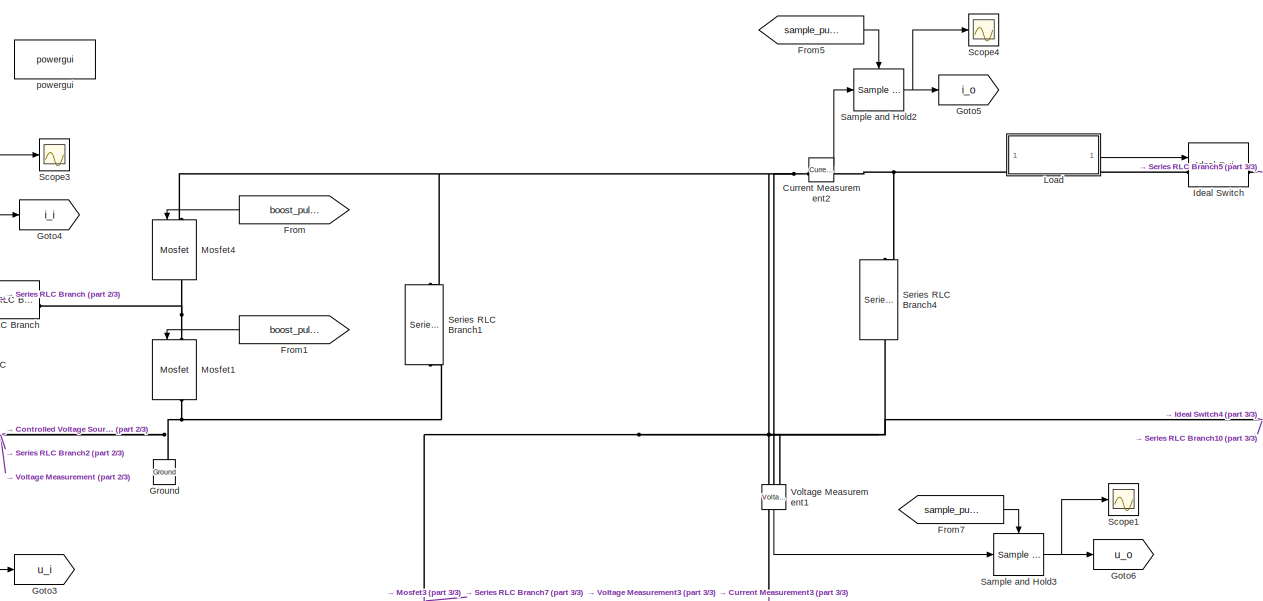
[diagram: root canvas - part 1/3, top center region]
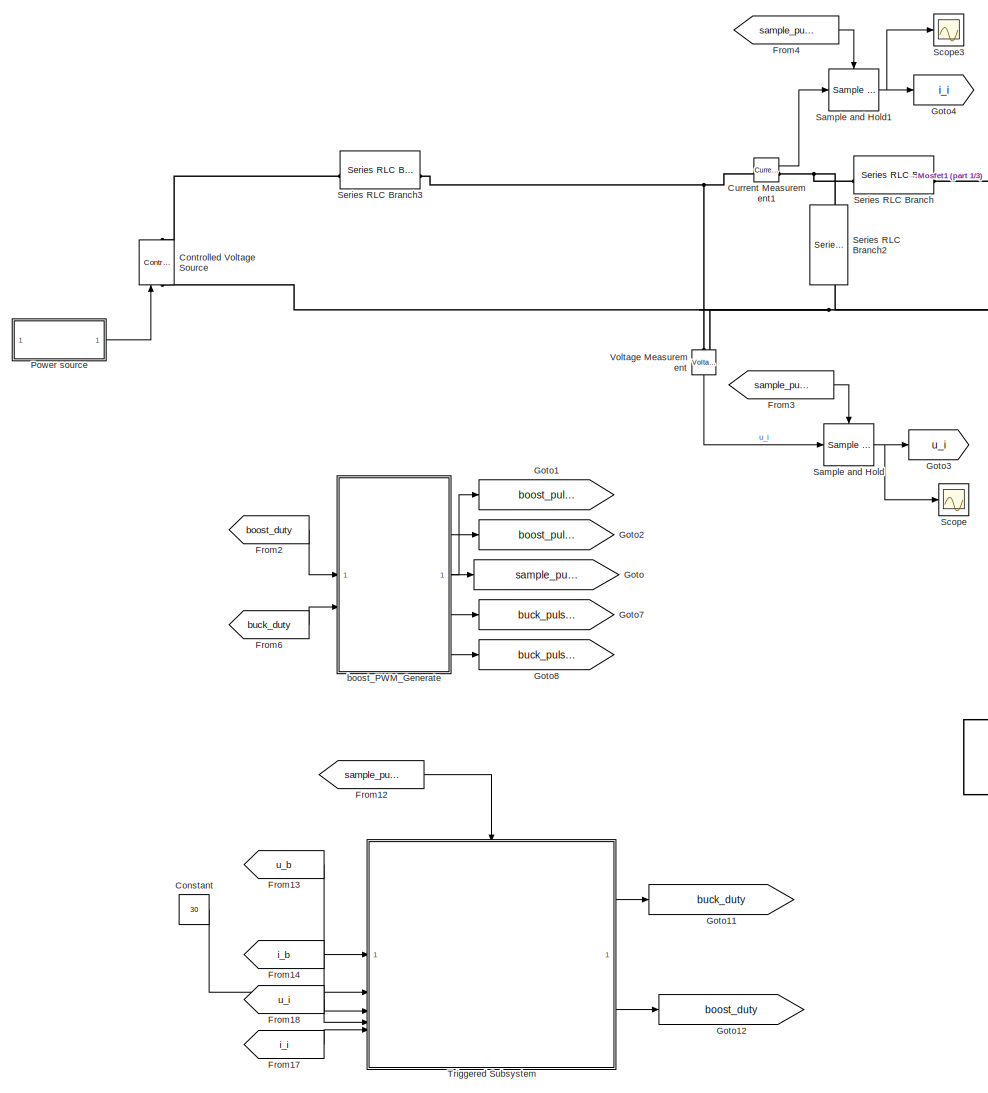
[diagram: root canvas - part 2/3, left side, full height]
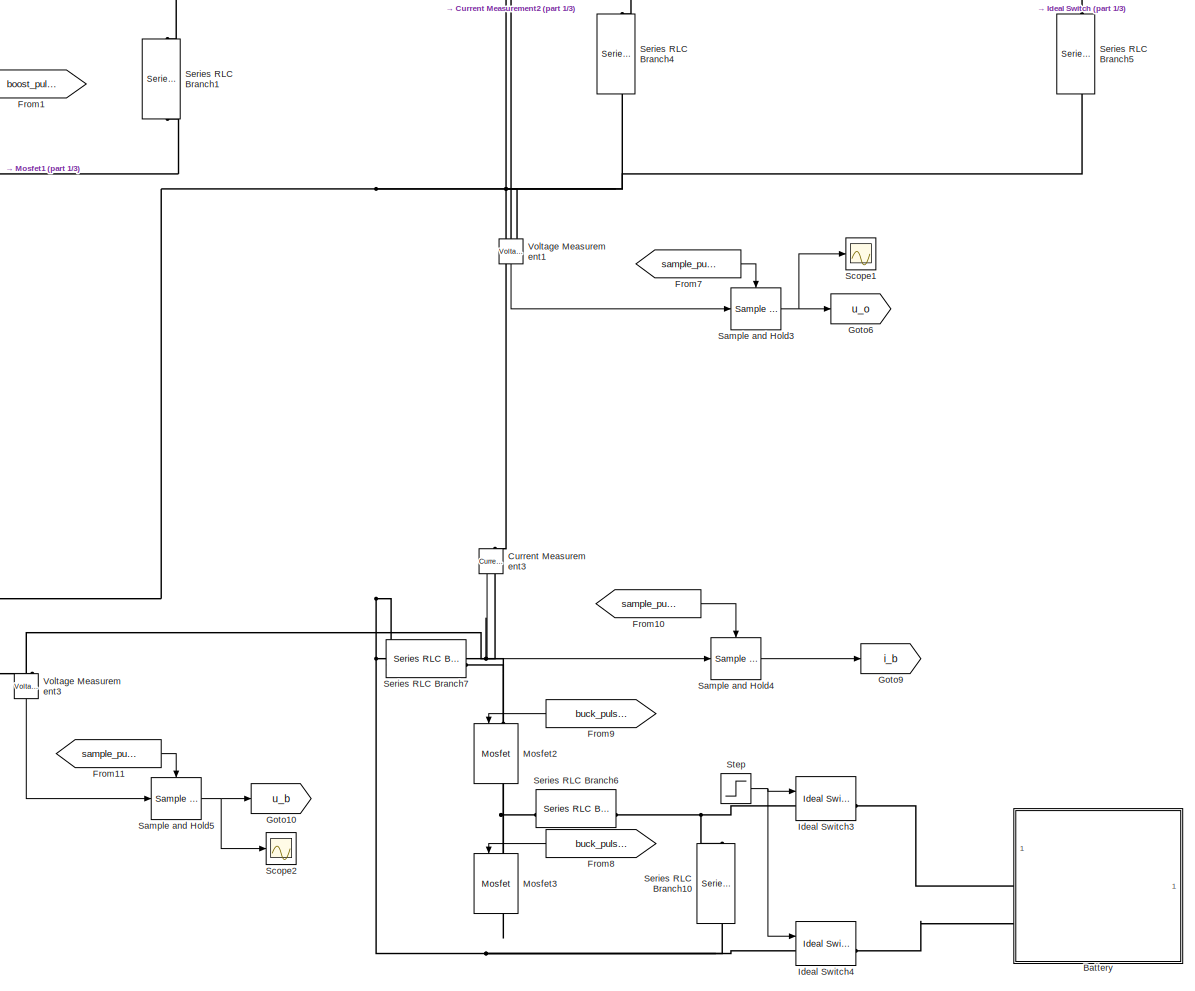
[diagram: root canvas - part 3/3, right side, full height]
MODEL slx_090e259a4e32
KIND model
CONFIG AbsTol = auto
CONFIG EnableMultiTasking = off
CONFIG FixedStep = 1e-8
CONFIG MaxStep = 1e-6
CONFIG MinStep = auto
CONFIG RelTol = 1e-5
CONFIG SampleTimeConstraint = Unconstrained
CONFIG SolverName = ode23tb
CONFIG StartTime = 0.0
CONFIG StopTime = 14
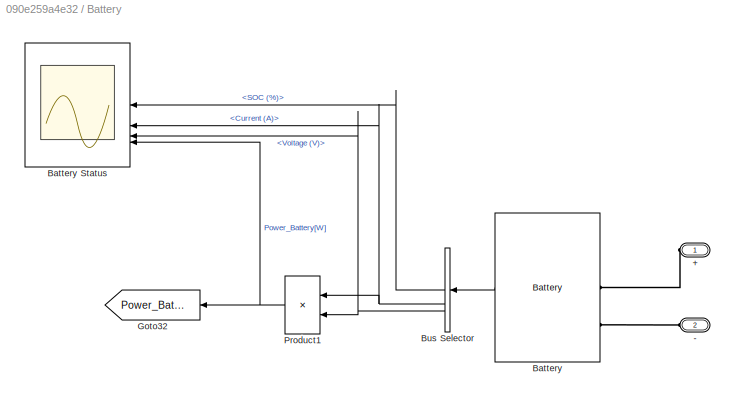
BLOCK [SubSystem] Battery
  NameLocation = top
BLOCK [PMIOPort] Battery/+
  NameLocation = top
  Side = Left
BLOCK [PMIOPort] Battery/-
  NameLocation = top
  Port = 2
  Side = Left
BLOCK [Reference] Battery/Battery  REF=spsBatteryLib/Battery
  LibrarySourceBlock = electricdrivelib/Extra Sources/Battery
  NameLocation = top
  SourceBlock = spsBatteryLib/Battery
  SourceType = Battery
BLOCK [Scope] Battery/Battery Status
  Floating = off
  NumInputPorts = 4
  ScopeSpecificationString = Simulink.scopes.TimeScopeBlockCfg('CurrentConfiguration', extmgr.ConfigurationSet(extmgr.Configuration('Core','General UI',true),extmgr.Configuration('Core','Source UI',true),extmgr.Configuration('Sources','WiredSimulink',true,'DataLoggingVariableName','ScopeData4','DataLoggingSaveFormat','Array','DataLoggingDecimation','1'),extmgr.Configuration('Visuals','Time Domain',true,'SerializedDisplays',{s...<+3552ch>
BLOCK [BusSelector] Battery/Bus Selector
  NameLocation = top
  OutputSignals = SOC (%),Current (A),Voltage (V)
BLOCK [Goto] Battery/Goto32
  GotoTag = Power_Battery
  TagVisibility = global
BLOCK [Product] Battery/Product1
  NameLocation = top
  RndMeth = Zero
BLOCK [Constant] Constant
  Value = 30
BLOCK [Reference] Controlled Voltage Source  REF=spsControlledVoltageSourceLib/Controlled Voltage Source
  LibrarySourceBlock = sps_lib/Sources/Controlled Voltage Source
  SourceBlock = spsControlledVoltageSourceLib/Controlled Voltage Source
  SourceType = Controlled Voltage Source
BLOCK [Reference] Current Measurement1  REF=spsCurrentMeasurementLib/Current Measurement
  LibrarySourceBlock = sps_lib/Sensors and Measurements/Current Measurement
  SourceBlock = spsCurrentMeasurementLib/Current Measurement
  SourceType = Current Measurement
  UserDataPersistent = on
BLOCK [Reference] Current Measurement2  REF=spsCurrentMeasurementLib/Current Measurement
  LibrarySourceBlock = sps_lib/Sensors and Measurements/Current Measurement
  SourceBlock = spsCurrentMeasurementLib/Current Measurement
  SourceType = Current Measurement
  UserDataPersistent = on
BLOCK [Reference] Current Measurement3  REF=spsCurrentMeasurementLib/Current Measurement
  LibrarySourceBlock = sps_lib/Sensors and Measurements/Current Measurement
  NameLocation = left
  SourceBlock = spsCurrentMeasurementLib/Current Measurement
  SourceType = Current Measurement
  UserDataPersistent = on
BLOCK [From] From
  GotoTag = boost_pulse_pgate
  NameLocation = top
BLOCK [From] From1
  GotoTag = boost_pulse_ngate
  NameLocation = top
BLOCK [From] From10
  GotoTag = sample_pulse
BLOCK [From] From11
  GotoTag = sample_pulse
BLOCK [From] From12
  GotoTag = sample_pulse
BLOCK [From] From13
  GotoTag = u_b
BLOCK [From] From14
  GotoTag = i_b
BLOCK [From] From17
  GotoTag = i_i
BLOCK [From] From18
  GotoTag = u_i
BLOCK [From] From2
  GotoTag = boost_duty
BLOCK [From] From3
  GotoTag = sample_pulse
BLOCK [From] From4
  GotoTag = sample_pulse
BLOCK [From] From5
  GotoTag = sample_pulse
BLOCK [From] From6
  GotoTag = buck_duty
BLOCK [From] From7
  GotoTag = sample_pulse
BLOCK [From] From8
  GotoTag = buck_pulse_ngate
  NameLocation = top
BLOCK [From] From9
  GotoTag = buck_pulse_pgate
  NameLocation = top
BLOCK [Goto] Goto
  GotoTag = sample_pulse
BLOCK [Goto] Goto1
  GotoTag = boost_pulse_pgate
BLOCK [Goto] Goto10
  GotoTag = u_b
BLOCK [Goto] Goto11
  GotoTag = buck_duty
BLOCK [Goto] Goto12
  GotoTag = boost_duty
BLOCK [Goto] Goto2
  GotoTag = boost_pulse_ngate
BLOCK [Goto] Goto3
  GotoTag = u_i
BLOCK [Goto] Goto4
  GotoTag = i_i
BLOCK [Goto] Goto5
  GotoTag = i_o
BLOCK [Goto] Goto6
  GotoTag = u_o
BLOCK [Goto] Goto7
  GotoTag = buck_pulse_pgate
BLOCK [Goto] Goto8
  GotoTag = buck_pulse_ngate
BLOCK [Goto] Goto9
  GotoTag = i_b
BLOCK [Reference] Ground  REF=spsGroundLib/Ground
  LibrarySourceBlock = sps_lib/Utilities/Ground
  NameLocation = right
  SourceBlock = spsGroundLib/Ground
  SourceType = Ground
BLOCK [Reference] Ideal Switch  REF=spsIdealSwitchLib/Ideal Switch
  LibrarySourceBlock = sps_lib/Power Electronics/Ideal Switch
  SourceBlock = spsIdealSwitchLib/Ideal Switch
  SourceType = Ideal Switch
BLOCK [Reference] Ideal Switch3  REF=spsIdealSwitchLib/Ideal Switch
  LibrarySourceBlock = sps_lib/Power Electronics/Ideal Switch
  SourceBlock = spsIdealSwitchLib/Ideal Switch
  SourceType = Ideal Switch
BLOCK [Reference] Ideal Switch4  REF=spsIdealSwitchLib/Ideal Switch
  LibrarySourceBlock = sps_lib/Power Electronics/Ideal Switch
  SourceBlock = spsIdealSwitchLib/Ideal Switch
  SourceType = Ideal Switch
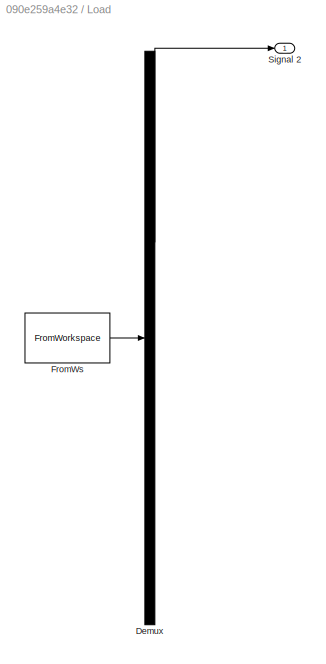
BLOCK [SubSystem] Load
  ClipboardFcn = sigbuilder_block('clipboard');
  CloseFcn = sigbuilder_block('close');
  ContinueFcn = sigbuilder_block('continue');
  CopyFcn = sigbuilder_block('copy');
  DeleteFcn = sigbuilder_block('delete');
  LoadFcn = sigbuilder_block('load');
  MaskHideContents = on
  ModelCloseFcn = sigbuilder_block('modelClose');
  NameChangeFcn = sigbuilder_block('namechange');
  OpenFcn = sigbuilder_block('open',[436.966 199.241 549.931 400.345 ]);
  PauseFcn = sigbuilder_block('pause');
  PreSaveFcn = sigbuilder_block('preSave');
  StartFcn = sigbuilder_block('start');
  StopFcn = sigbuilder_block('stop');
  Tag = STV Subsys
BLOCK [Demux] Load/Demux
  DisplayOption = none
  Outputs = 1
  Tag = STV Demux
BLOCK [FromWorkspace] Load/FromWs
  Tag = STV FromWs
  VariableName = tuvar
BLOCK [Outport] Load/Signal 2
  Tag = STV Outport
  VectorParamsAs1DForOutWhenUnconnected = off
BLOCK [Reference] Mosfet1  REF=spsMosfetLib/Mosfet
  LibrarySourceBlock = sps_lib/Power Electronics/Mosfet
  NameLocation = left
  SourceBlock = spsMosfetLib/Mosfet
  SourceType = Mosfet
BLOCK [Reference] Mosfet2  REF=spsMosfetLib/Mosfet
  LibrarySourceBlock = sps_lib/Power Electronics/Mosfet
  NameLocation = left
  SourceBlock = spsMosfetLib/Mosfet
  SourceType = Mosfet
BLOCK [Reference] Mosfet3  REF=spsMosfetLib/Mosfet
  LibrarySourceBlock = sps_lib/Power Electronics/Mosfet
  NameLocation = left
  SourceBlock = spsMosfetLib/Mosfet
  SourceType = Mosfet
BLOCK [Reference] Mosfet4  REF=spsMosfetLib/Mosfet
  LibrarySourceBlock = sps_lib/Power Electronics/Mosfet
  NameLocation = left
  SourceBlock = spsMosfetLib/Mosfet
  SourceType = Mosfet
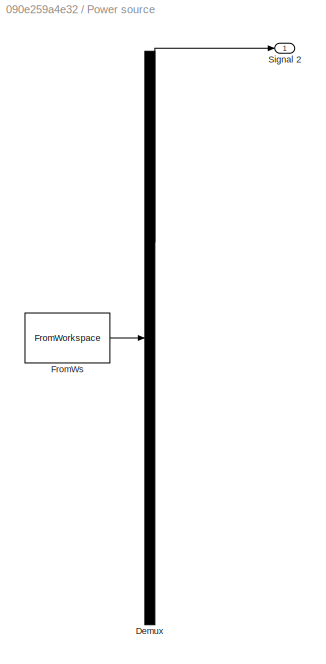
BLOCK [SubSystem] Power source
  ClipboardFcn = sigbuilder_block('clipboard');
  CloseFcn = sigbuilder_block('close');
  ContinueFcn = sigbuilder_block('continue');
  CopyFcn = sigbuilder_block('copy');
  DeleteFcn = sigbuilder_block('delete');
  LoadFcn = sigbuilder_block('load',[436.966 199.241 549.931 400.345 ]);
  MaskHideContents = on
  ModelCloseFcn = sigbuilder_block('modelClose');
  NameChangeFcn = sigbuilder_block('namechange');
  OpenFcn = sigbuilder_block('open',[436.966 199.241 549.931 400.345 ]);
  PauseFcn = sigbuilder_block('pause');
  PreSaveFcn = sigbuilder_block('preSave');
  StartFcn = sigbuilder_block('start');
  StopFcn = sigbuilder_block('stop');
  Tag = STV Subsys
BLOCK [Demux] Power source/Demux
  DisplayOption = none
  Outputs = 1
  Tag = STV Demux
BLOCK [FromWorkspace] Power source/FromWs
  Tag = STV FromWs
  VariableName = tuvar
BLOCK [Outport] Power source/Signal 2
  Tag = STV Outport
  VectorParamsAs1DForOutWhenUnconnected = off
BLOCK [Reference] Sample and Hold  REF=dspsigops/Sample
and Hold
  LibrarySourceBlock = dsphdlsupportsigops/Sample\nand Hold
  SourceBlock = dspsigops/Sample\nand Hold
  SourceType = Sample and Hold
BLOCK [Reference] Sample and Hold1  REF=dspsigops/Sample
and Hold
  LibrarySourceBlock = dsphdlsupportsigops/Sample\nand Hold
  SourceBlock = dspsigops/Sample\nand Hold
  SourceType = Sample and Hold
BLOCK [Reference] Sample and Hold2  REF=dspsigops/Sample
and Hold
  LibrarySourceBlock = dsphdlsupportsigops/Sample\nand Hold
  SourceBlock = dspsigops/Sample\nand Hold
  SourceType = Sample and Hold
BLOCK [Reference] Sample and Hold3  REF=dspsigops/Sample
and Hold
  LibrarySourceBlock = dsphdlsupportsigops/Sample\nand Hold
  SourceBlock = dspsigops/Sample\nand Hold
  SourceType = Sample and Hold
BLOCK [Reference] Sample and Hold4  REF=dspsigops/Sample
and Hold
  LibrarySourceBlock = dsphdlsupportsigops/Sample\nand Hold
  SourceBlock = dspsigops/Sample\nand Hold
  SourceType = Sample and Hold
BLOCK [Reference] Sample and Hold5  REF=dspsigops/Sample
and Hold
  LibrarySourceBlock = dsphdlsupportsigops/Sample\nand Hold
  SourceBlock = dspsigops/Sample\nand Hold
  SourceType = Sample and Hold
BLOCK [Scope] Scope
  Floating = off
  NumInputPorts = 1
  ScopeSpecificationString = Simulink.scopes.TimeScopeBlockCfg('CurrentConfiguration', extmgr.ConfigurationSet(extmgr.Configuration('Core','General UI',true,'FigureColor',[1 1 1]),extmgr.Configuration('Core','Source UI',true),extmgr.Configuration('Sources','WiredSimulink',true,'DataLoggingVariableName','ScopeData1'),extmgr.Configuration('Visuals','Time Domain',true,'SerializedDisplays',{struct('MinYLimReal','-4.25377','MaxYLi...<+1566ch>
BLOCK [Scope] Scope1
  Floating = off
  NumInputPorts = 1
  ScopeSpecificationString = Simulink.scopes.TimeScopeBlockCfg('CurrentConfiguration', extmgr.ConfigurationSet(extmgr.Configuration('Core','General UI',true,'FigureColor',[1 1 1]),extmgr.Configuration('Core','Source UI',true),extmgr.Configuration('Sources','WiredSimulink',true,'DataLoggingVariableName','ScopeData2'),extmgr.Configuration('Visuals','Time Domain',true,'SerializedDisplays',{struct('MinYLimReal','1.18522','MaxYLim...<+1566ch>
BLOCK [Scope] Scope2
  Floating = off
  NumInputPorts = 1
  ScopeSpecificationString = Simulink.scopes.TimeScopeBlockCfg('CurrentConfiguration', extmgr.ConfigurationSet(extmgr.Configuration('Core','General UI',true,'FigureColor',[1 1 1]),extmgr.Configuration('Core','Source UI',true),extmgr.Configuration('Sources','WiredSimulink',true,'DataLoggingVariableName','ScopeData3'),extmgr.Configuration('Visuals','Time Domain',true,'SerializedDisplays',{struct('MinYLimReal','-7.00732','MaxYLi...<+1599ch>
BLOCK [Scope] Scope3
  Floating = off
  NumInputPorts = 1
  ScopeSpecificationString = Simulink.scopes.TimeScopeBlockCfg('CurrentConfiguration', extmgr.ConfigurationSet(extmgr.Configuration('Core','General UI',true,'FigureColor',[1 1 1]),extmgr.Configuration('Core','Source UI',true),extmgr.Configuration('Sources','WiredSimulink',true,'DataLoggingVariableName','ScopeData4'),extmgr.Configuration('Visuals','Time Domain',true,'SerializedDisplays',{struct('MinYLimReal','0.70994','MaxYLim...<+1565ch>
BLOCK [Scope] Scope4
  Floating = off
  NumInputPorts = 1
  ScopeSpecificationString = Simulink.scopes.TimeScopeBlockCfg('CurrentConfiguration', extmgr.ConfigurationSet(extmgr.Configuration('Core','General UI',true,'FigureColor',[1 1 1]),extmgr.Configuration('Core','Source UI',true),extmgr.Configuration('Sources','WiredSimulink',true,'DataLoggingVariableName','ScopeData5'),extmgr.Configuration('Visuals','Time Domain',true,'SerializedDisplays',{struct('MinYLimReal','-0.04128','MaxYLi...<+1543ch>
BLOCK [Reference] Series RLC Branch  REF=spsSeriesRLCBranchLib/Series RLC Branch
  LibrarySourceBlock = sps_lib/Passives/Series RLC Branch
  SourceBlock = spsSeriesRLCBranchLib/Series RLC Branch
  SourceType = Series RLC Branch
BLOCK [Reference] Series RLC Branch1  REF=spsSeriesRLCBranchLib/Series RLC Branch
  LibrarySourceBlock = sps_lib/Passives/Series RLC Branch
  NameLocation = left
  SourceBlock = spsSeriesRLCBranchLib/Series RLC Branch
  SourceType = Series RLC Branch
BLOCK [Reference] Series RLC Branch10  REF=spsSeriesRLCBranchLib/Series RLC Branch
  LibrarySourceBlock = sps_lib/Passives/Series RLC Branch
  NameLocation = left
  SourceBlock = spsSeriesRLCBranchLib/Series RLC Branch
  SourceType = Series RLC Branch
BLOCK [Reference] Series RLC Branch2  REF=spsSeriesRLCBranchLib/Series RLC Branch
  LibrarySourceBlock = sps_lib/Passives/Series RLC Branch
  NameLocation = left
  SourceBlock = spsSeriesRLCBranchLib/Series RLC Branch
  SourceType = Series RLC Branch
BLOCK [Reference] Series RLC Branch3  REF=spsSeriesRLCBranchLib/Series RLC Branch
  LibrarySourceBlock = sps_lib/Passives/Series RLC Branch
  SourceBlock = spsSeriesRLCBranchLib/Series RLC Branch
  SourceType = Series RLC Branch
BLOCK [Reference] Series RLC Branch4  REF=spsSeriesRLCBranchLib/Series RLC Branch
  LibrarySourceBlock = sps_lib/Passives/Series RLC Branch
  NameLocation = left
  SourceBlock = spsSeriesRLCBranchLib/Series RLC Branch
  SourceType = Series RLC Branch
BLOCK [Reference] Series RLC Branch5  REF=spsSeriesRLCBranchLib/Series RLC Branch
  LibrarySourceBlock = sps_lib/Passives/Series RLC Branch
  NameLocation = left
  SourceBlock = spsSeriesRLCBranchLib/Series RLC Branch
  SourceType = Series RLC Branch
BLOCK [Reference] Series RLC Branch6  REF=spsSeriesRLCBranchLib/Series RLC Branch
  LibrarySourceBlock = sps_lib/Passives/Series RLC Branch
  SourceBlock = spsSeriesRLCBranchLib/Series RLC Branch
  SourceType = Series RLC Branch
BLOCK [Reference] Series RLC Branch7  REF=spsSeriesRLCBranchLib/Series RLC Branch
  LibrarySourceBlock = sps_lib/Passives/Series RLC Branch
  NameLocation = top
  SourceBlock = spsSeriesRLCBranchLib/Series RLC Branch
  SourceType = Series RLC Branch
BLOCK [Step] Step
  SampleTime = 0
  Time = 1.5
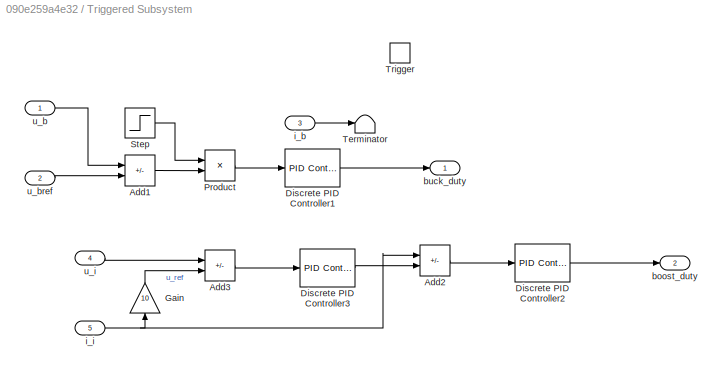
BLOCK [SubSystem] Triggered Subsystem
  TreatAsAtomicUnit = on
BLOCK [Sum] Triggered Subsystem/Add1
  IconShape = rectangular
  Inputs = +-
BLOCK [Sum] Triggered Subsystem/Add2
  IconShape = rectangular
  Inputs = -+
BLOCK [Sum] Triggered Subsystem/Add3
  IconShape = rectangular
  Inputs = +-
BLOCK [Reference] Triggered Subsystem/Discrete PID Controller1  REF=slpidlib/PID Controller
  LibrarySourceBlock = simulink/Discrete/Discrete PID Controller
  SourceBlock = slpidlib/PID Controller
  SourceType = PID 1dof
BLOCK [Reference] Triggered Subsystem/Discrete PID Controller2  REF=slpidlib/PID Controller
  LibrarySourceBlock = simulink/Discrete/Discrete PID Controller
  SourceBlock = slpidlib/PID Controller
  SourceType = PID 1dof
BLOCK [Reference] Triggered Subsystem/Discrete PID Controller3  REF=slpidlib/PID Controller
  LibrarySourceBlock = simulink/Discrete/Discrete PID Controller
  SourceBlock = slpidlib/PID Controller
  SourceType = PID 1dof
BLOCK [Gain] Triggered Subsystem/Gain
  Gain = 10
  NameLocation = right
BLOCK [Product] Triggered Subsystem/Product
BLOCK [Step] Triggered Subsystem/Step
  Time = 1.5
BLOCK [Terminator] Triggered Subsystem/Terminator
BLOCK [TriggerPort] Triggered Subsystem/Trigger
  StatesWhenEnabling = held
  VariantControl = (inherit)
BLOCK [Outport] Triggered Subsystem/boost_duty
  Port = 2
BLOCK [Outport] Triggered Subsystem/buck_duty
BLOCK [Inport] Triggered Subsystem/i_b
  Port = 3
BLOCK [Inport] Triggered Subsystem/i_i
  Port = 5
BLOCK [Inport] Triggered Subsystem/u_b
BLOCK [Inport] Triggered Subsystem/u_bref
  Port = 2
BLOCK [Inport] Triggered Subsystem/u_i
  Port = 4
BLOCK [Reference] Voltage Measurement  REF=spsVoltageMeasurementLib/Voltage Measurement
  LibrarySourceBlock = sps_lib/Sensors and Measurements/Voltage Measurement
  NameLocation = left
  SourceBlock = spsVoltageMeasurementLib/Voltage Measurement
  SourceType = Voltage Measurement
  UserDataPersistent = on
BLOCK [Reference] Voltage Measurement1  REF=spsVoltageMeasurementLib/Voltage Measurement
  LibrarySourceBlock = sps_lib/Sensors and Measurements/Voltage Measurement
  NameLocation = left
  SourceBlock = spsVoltageMeasurementLib/Voltage Measurement
  SourceType = Voltage Measurement
  UserDataPersistent = on
BLOCK [Reference] Voltage Measurement3  REF=spsVoltageMeasurementLib/Voltage Measurement
  LibrarySourceBlock = sps_lib/Sensors and Measurements/Voltage Measurement
  NameLocation = left
  SourceBlock = spsVoltageMeasurementLib/Voltage Measurement
  SourceType = Voltage Measurement
  UserDataPersistent = on
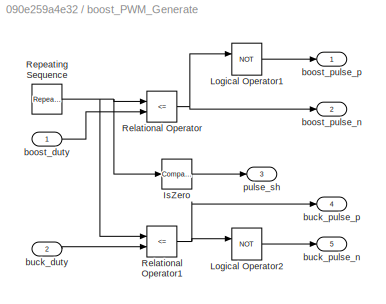
BLOCK [SubSystem] boost_PWM_Generate
BLOCK [Reference] boost_PWM_Generate/IsZero  REF=simulink/Logic and Bit
Operations/Compare
To Zero
  LibrarySourceBlock = simulink/Quick Insert/Logic and Bit\nOperations/IsZero
  SourceBlock = simulink/Logic and Bit\nOperations/Compare\nTo Zero
  SourceType = Compare To Zero
BLOCK [Logic] boost_PWM_Generate/Logical Operator1
  AllPortsSameDT = off
  Operator = NOT
  OutDataTypeStr = boolean
BLOCK [Logic] boost_PWM_Generate/Logical Operator2
  AllPortsSameDT = off
  Operator = NOT
  OutDataTypeStr = boolean
BLOCK [RelationalOperator] boost_PWM_Generate/Relational Operator
  InputSameDT = off
  Operator = <=
  OutDataTypeStr = boolean
  RndMeth = Simplest
BLOCK [RelationalOperator] boost_PWM_Generate/Relational Operator1
  InputSameDT = off
  Operator = <=
  OutDataTypeStr = boolean
  RndMeth = Simplest
BLOCK [Reference] boost_PWM_Generate/Repeating Sequence  REF=simulink/Sources/Repeating
Sequence
  SourceBlock = simulink/Sources/Repeating\nSequence
  SourceType = Repeating table
BLOCK [Inport] boost_PWM_Generate/boost_duty
BLOCK [Outport] boost_PWM_Generate/boost_pulse_n
  Port = 2
BLOCK [Outport] boost_PWM_Generate/boost_pulse_p
BLOCK [Inport] boost_PWM_Generate/buck_duty
  Port = 2
BLOCK [Outport] boost_PWM_Generate/buck_pulse_n
  Port = 5
BLOCK [Outport] boost_PWM_Generate/buck_pulse_p
  Port = 4
BLOCK [Outport] boost_PWM_Generate/pulse_sh
  Port = 3
BLOCK [Reference] powergui  REF=spspowerguiLib/powergui
  Priority = 1
  SourceBlock = spspowerguiLib/powergui
  SourceType = PSB option menu block
LINE Battery/Battery:1 -> Battery/Bus Selector:1
LINE Battery/Bus Selector:1 -> Battery/Battery Status:1
NET Battery/Bus Selector:2 -> Battery/Battery Status:2, Battery/Product1:1
NET Battery/Bus Selector:3 -> Battery/Battery Status:3, Battery/Product1:2
NET Battery/Product1:1 -> Battery/Battery Status:4, Battery/Goto32:1
LINE Constant:1 -> Triggered Subsystem:2
LINE Current Measurement1:1 -> Sample and Hold1:1
LINE Current Measurement2:1 -> Sample and Hold2:1
LINE Current Measurement3:1 -> Sample and Hold4:1
LINE From10:1 -> Sample and Hold4:trigger
LINE From11:1 -> Sample and Hold5:trigger
LINE From12:1 -> Triggered Subsystem:trigger
LINE From13:1 -> Triggered Subsystem:1
LINE From14:1 -> Triggered Subsystem:3
LINE From17:1 -> Triggered Subsystem:5
LINE From18:1 -> Triggered Subsystem:4
LINE From1:1 -> Mosfet1:1
LINE From2:1 -> boost_PWM_Generate:1
LINE From3:1 -> Sample and Hold:trigger
LINE From4:1 -> Sample and Hold1:trigger
LINE From5:1 -> Sample and Hold2:trigger
LINE From6:1 -> boost_PWM_Generate:2
LINE From7:1 -> Sample and Hold3:trigger
LINE From8:1 -> Mosfet3:1
LINE From9:1 -> Mosfet2:1
LINE From:1 -> Mosfet4:1
LINE Load:1 -> Ideal Switch:1
LINE Power source:1 -> Controlled Voltage Source:1
NET Sample and Hold1:1 -> Goto4:1, Scope3:1
NET Sample and Hold2:1 -> Goto5:1, Scope4:1
NET Sample and Hold3:1 -> Goto6:1, Scope1:1
LINE Sample and Hold4:1 -> Goto9:1
NET Sample and Hold5:1 -> Goto10:1, Scope2:1
NET Sample and Hold:1 -> Goto3:1, Scope:1
NET Step:1 -> Ideal Switch3:1, Ideal Switch4:1
LINE Triggered Subsystem/Add1:1 -> Triggered Subsystem/Product:2
LINE Triggered Subsystem/Add2:1 -> Triggered Subsystem/Discrete PID Controller2:1
LINE Triggered Subsystem/Add3:1 -> Triggered Subsystem/Discrete PID Controller3:1
LINE Triggered Subsystem/Discrete PID Controller1:1 -> Triggered Subsystem/buck_duty:1
LINE Triggered Subsystem/Discrete PID Controller2:1 -> Triggered Subsystem/boost_duty:1
LINE Triggered Subsystem/Discrete PID Controller3:1 -> Triggered Subsystem/Add2:2
LINE Triggered Subsystem/Gain:1 -> Triggered Subsystem/Add3:2
LINE Triggered Subsystem/Product:1 -> Triggered Subsystem/Discrete PID Controller1:1
LINE Triggered Subsystem/Step:1 -> Triggered Subsystem/Product:1
LINE Triggered Subsystem/i_b:1 -> Triggered Subsystem/Terminator:1
NET Triggered Subsystem/i_i:1 -> Triggered Subsystem/Add2:1, Triggered Subsystem/Gain:1
LINE Triggered Subsystem/u_b:1 -> Triggered Subsystem/Add1:1
LINE Triggered Subsystem/u_bref:1 -> Triggered Subsystem/Add1:2
LINE Triggered Subsystem/u_i:1 -> Triggered Subsystem/Add3:1
LINE Triggered Subsystem:1 -> Goto11:1
LINE Triggered Subsystem:2 -> Goto12:1
LINE Voltage Measurement1:1 -> Sample and Hold3:1
LINE Voltage Measurement3:1 -> Sample and Hold5:1
LINE Voltage Measurement:1 -> Sample and Hold:1
LINE boost_PWM_Generate/IsZero:1 -> boost_PWM_Generate/pulse_sh:1
LINE boost_PWM_Generate/Logical Operator1:1 -> boost_PWM_Generate/boost_pulse_p:1
LINE boost_PWM_Generate/Logical Operator2:1 -> boost_PWM_Generate/buck_pulse_n:1
NET boost_PWM_Generate/Relational Operator1:1 -> boost_PWM_Generate/Logical Operator2:1, boost_PWM_Generate/buck_pulse_p:1
NET boost_PWM_Generate/Relational Operator:1 -> boost_PWM_Generate/Logical Operator1:1, boost_PWM_Generate/boost_pulse_n:1
NET boost_PWM_Generate/Repeating Sequence:1 -> boost_PWM_Generate/IsZero:1, boost_PWM_Generate/Relational Operator1:1, boost_PWM_Generate/Relational Operator:1
LINE boost_PWM_Generate/boost_duty:1 -> boost_PWM_Generate/Relational Operator:2
LINE boost_PWM_Generate/buck_duty:1 -> boost_PWM_Generate/Relational Operator1:2
LINE boost_PWM_Generate:1 -> Goto1:1
LINE boost_PWM_Generate:2 -> Goto2:1
LINE boost_PWM_Generate:3 -> Goto:1
LINE boost_PWM_Generate:4 -> Goto7:1
LINE boost_PWM_Generate:5 -> Goto8:1
PLINE Battery/+:RConn1 -- Battery/Battery:LConn1
PLINE Battery/-:RConn1 -- Battery/Battery:LConn2
PLINE Battery:LConn1 -- Ideal Switch3:RConn1
PLINE Battery:LConn2 -- Ideal Switch4:RConn1
PNET net1: Controlled Voltage Source:LConn1 -- Ground:LConn1 -- Ideal Switch4:LConn1 -- Mosfet1:RConn1 -- Mosfet3:RConn1 -- Series RLC Branch10:RConn1 -- Series RLC Branch1:RConn1 -- Series RLC Branch2:RConn1 -- Series RLC Branch4:RConn1 -- Series RLC Branch5:RConn1 -- Series RLC Branch7:RConn1 -- Voltage Measurement1:LConn2 -- Voltage Measurement3:LConn2 -- Voltage Measurement:LConn2
PLINE Controlled Voltage Source:RConn1 -- Series RLC Branch3:LConn1
PNET net2: Current Measurement1:LConn1 -- Series RLC Branch3:RConn1 -- Voltage Measurement:LConn1
PNET net3: Current Measurement1:RConn1 -- Series RLC Branch2:LConn1 -- Series RLC Branch:LConn1
PNET net4: Current Measurement2:LConn1 -- Current Measurement3:LConn1 -- Mosfet4:LConn1 -- Series RLC Branch1:LConn1 -- Voltage Measurement1:LConn1
PNET net5: Current Measurement2:RConn1 -- Ideal Switch:LConn1 -- Series RLC Branch4:LConn1
PNET net6: Current Measurement3:RConn1 -- Mosfet2:LConn1 -- Series RLC Branch7:LConn1 -- Voltage Measurement3:LConn1
PNET net7: Ideal Switch3:LConn1 -- Series RLC Branch10:LConn1 -- Series RLC Branch6:RConn1
PLINE Ideal Switch:RConn1 -- Series RLC Branch5:LConn1
PNET net8: Mosfet1:LConn1 -- Mosfet4:RConn1 -- Series RLC Branch:RConn1
PNET net9: Mosfet2:RConn1 -- Mosfet3:LConn1 -- Series RLC Branch6:LConn1
note: NET lines group one-source signal fan-out (src -> all destinations, sorted); 1:1 wires keep LINE; PNET lines group multi-terminal physical nets as a canonical sorted terminal list (undirected conserving connections); 2-terminal nets keep the pairwise PLINE form
